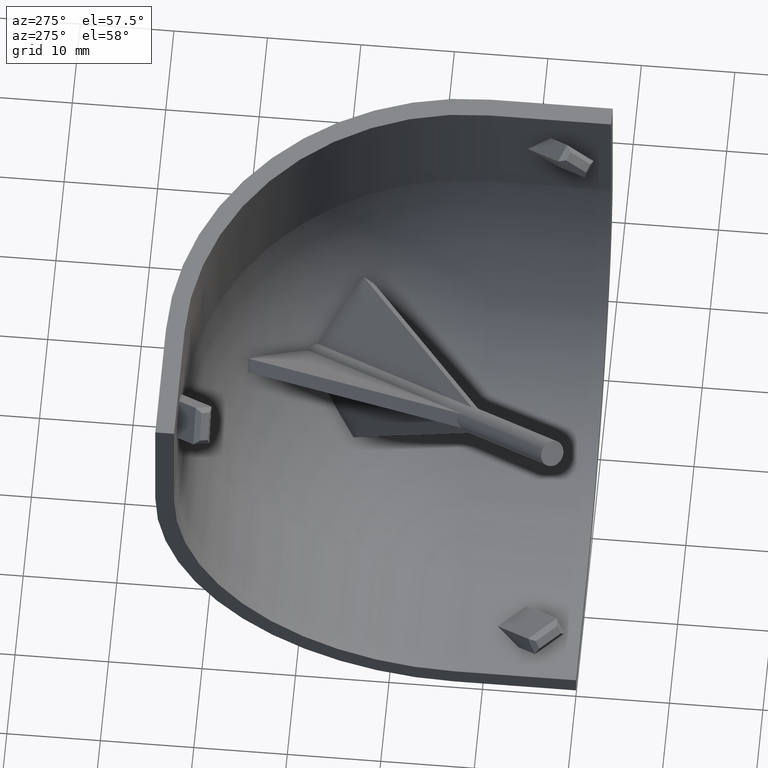
[diagram: clean part render]
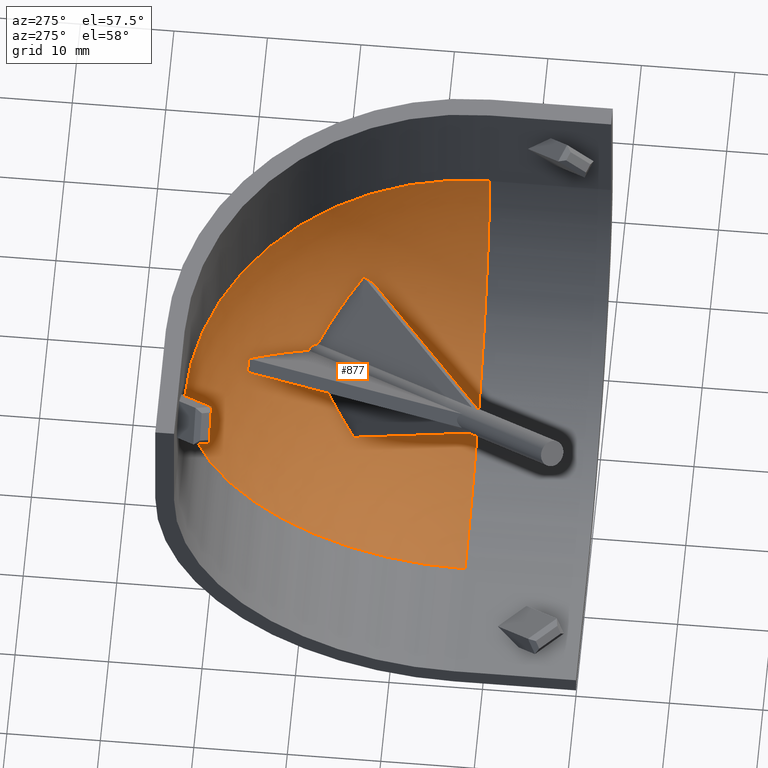
[diagram: same view with one face highlighted and labeled with its STEP entity id]
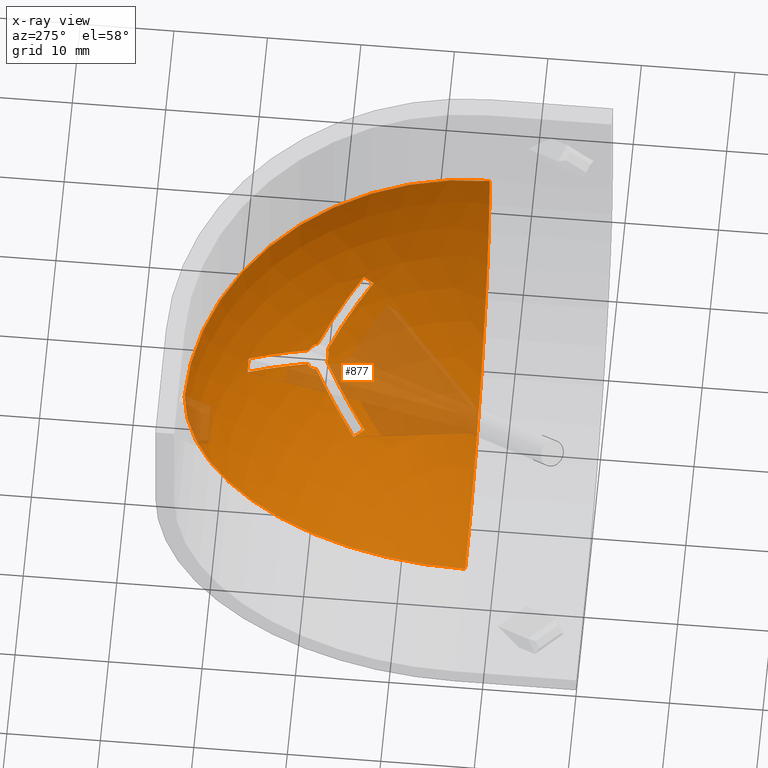
[diagram: x-ray of the same camera — body ghosted, the highlighted face saturated]
A machine part, auxiliary view. The second image highlights one B-rep face of the part: STEP entity #877.
The next image is the same camera in x-ray: the body ghosted, the highlighted face saturated — about 15% of this face is hidden behind the body in this view.
In plain terms, the highlighted spherical surface has radius 30 mm.
Its self-contained STEP definition (entity closure, byte-faithful):
#61=SPHERICAL_SURFACE('',#941,30.);
#64=FACE_BOUND('',#327,.T.);
#270=FACE_OUTER_BOUND('',#326,.T.);
#326=EDGE_LOOP('',(#628,#629,#630));
#327=EDGE_LOOP('',(#631,#632,#633,#634,#635,#636,#637,#638,#639,#640,#641,
#642));
#385=CIRCLE('',#936,1.4);
#386=CIRCLE('',#938,1.4);
#387=CIRCLE('',#940,1.4);
#388=CIRCLE('',#942,30.);
#389=CIRCLE('',#943,30.);
#390=CIRCLE('',#944,30.);
#391=CIRCLE('',#945,29.9616539883931);
#392=CIRCLE('',#946,29.9906235346983);
#393=CIRCLE('',#947,29.9906235346983);
#394=CIRCLE('',#948,29.9616539883931);
#395=CIRCLE('',#949,29.9906235346983);
#396=CIRCLE('',#950,29.9906235346983);
#397=CIRCLE('',#951,29.9616539883931);
#398=CIRCLE('',#952,29.9906235346983);
#399=CIRCLE('',#953,29.9906235346983);
#412=VERTEX_POINT('',#1290);
#413=VERTEX_POINT('',#1292);
#416=VERTEX_POINT('',#1298);
#417=VERTEX_POINT('',#1300);
#420=VERTEX_POINT('',#1306);
#421=VERTEX_POINT('',#1308);
#422=VERTEX_POINT('',#1312);
#423=VERTEX_POINT('',#1313);
#424=VERTEX_POINT('',#1315);
#425=VERTEX_POINT('',#1318);
#426=VERTEX_POINT('',#1319);
#427=VERTEX_POINT('',#1322);
#428=VERTEX_POINT('',#1324);
#429=VERTEX_POINT('',#1327);
#430=VERTEX_POINT('',#1329);
#491=EDGE_CURVE('',#413,#412,#385,.T.);
#495=EDGE_CURVE('',#417,#416,#386,.T.);
#499=EDGE_CURVE('',#421,#420,#387,.T.);
#501=EDGE_CURVE('',#422,#423,#388,.T.);
#502=EDGE_CURVE('',#424,#422,#389,.T.);
#503=EDGE_CURVE('',#424,#423,#390,.T.);
#504=EDGE_CURVE('',#425,#426,#391,.T.);
#505=EDGE_CURVE('',#426,#421,#392,.T.);
#506=EDGE_CURVE('',#427,#420,#393,.T.);
#507=EDGE_CURVE('',#427,#428,#394,.T.);
#508=EDGE_CURVE('',#428,#417,#395,.T.);
#509=EDGE_CURVE('',#429,#416,#396,.T.);
#510=EDGE_CURVE('',#429,#430,#397,.T.);
#511=EDGE_CURVE('',#430,#413,#398,.T.);
#512=EDGE_CURVE('',#425,#412,#399,.T.);
#628=ORIENTED_EDGE('',*,*,#501,.F.);
#629=ORIENTED_EDGE('',*,*,#502,.F.);
#630=ORIENTED_EDGE('',*,*,#503,.T.);
#631=ORIENTED_EDGE('',*,*,#504,.T.);
#632=ORIENTED_EDGE('',*,*,#505,.T.);
#633=ORIENTED_EDGE('',*,*,#499,.T.);
#634=ORIENTED_EDGE('',*,*,#506,.F.);
#635=ORIENTED_EDGE('',*,*,#507,.T.);
#636=ORIENTED_EDGE('',*,*,#508,.T.);
#637=ORIENTED_EDGE('',*,*,#495,.T.);
#638=ORIENTED_EDGE('',*,*,#509,.F.);
#639=ORIENTED_EDGE('',*,*,#510,.T.);
#640=ORIENTED_EDGE('',*,*,#511,.T.);
#641=ORIENTED_EDGE('',*,*,#491,.T.);
#642=ORIENTED_EDGE('',*,*,#512,.F.);
#877=ADVANCED_FACE('',(#270,#64),#61,.F.);
#936=AXIS2_PLACEMENT_3D('',#1293,#1025,#1026);
#938=AXIS2_PLACEMENT_3D('',#1301,#1031,#1032);
#940=AXIS2_PLACEMENT_3D('',#1309,#1037,#1038);
#941=AXIS2_PLACEMENT_3D('',#1311,#1040,#1041);
#942=AXIS2_PLACEMENT_3D('',#1314,#1042,#1043);
#943=AXIS2_PLACEMENT_3D('',#1316,#1044,#1045);
#944=AXIS2_PLACEMENT_3D('',#1317,#1046,#1047);
#945=AXIS2_PLACEMENT_3D('',#1320,#1048,#1049);
#946=AXIS2_PLACEMENT_3D('',#1321,#1050,#1051);
#947=AXIS2_PLACEMENT_3D('',#1323,#1052,#1053);
#948=AXIS2_PLACEMENT_3D('',#1325,#1054,#1055);
#949=AXIS2_PLACEMENT_3D('',#1326,#1056,#1057);
#950=AXIS2_PLACEMENT_3D('',#1328,#1058,#1059);
#951=AXIS2_PLACEMENT_3D('',#1330,#1060,#1061);
#952=AXIS2_PLACEMENT_3D('',#1331,#1062,#1063);
#953=AXIS2_PLACEMENT_3D('',#1332,#1064,#1065);
#1025=DIRECTION('center_axis',(0.577350269189624,0.577350269189624,-0.57735026918963));
#1026=DIRECTION('ref_axis',(0.707106781186551,6.40987562127852E-17,0.707106781186544));
#1031=DIRECTION('center_axis',(0.577350269189624,0.577350269189624,-0.57735026918963));
#1032=DIRECTION('ref_axis',(0.707106781186551,6.40987562127852E-17,0.707106781186544));
#1037=DIRECTION('center_axis',(0.577350269189624,0.577350269189624,-0.57735026918963));
#1038=DIRECTION('ref_axis',(0.70710678118655,1.70899131969916E-15,0.707106781186545));
#1040=DIRECTION('center_axis',(5.9211894646675E-17,0.,1.));
#1041=DIRECTION('ref_axis',(1.,0.,0.));
#1042=DIRECTION('center_axis',(0.,0.,-1.));
#1043=DIRECTION('ref_axis',(1.,0.,0.));
#1044=DIRECTION('center_axis',(1.,0.,0.));
#1045=DIRECTION('ref_axis',(0.,0.,1.));
#1046=DIRECTION('center_axis',(0.,-1.,0.));
#1047=DIRECTION('ref_axis',(1.,0.,0.));
#1048=DIRECTION('center_axis',(0.551217453556055,0.551217453556047,0.626353444782071));
#1049=DIRECTION('ref_axis',(-0.750697811457472,-9.17961462769757E-17,0.660645741583915));
#1050=DIRECTION('center_axis',(0.707106781186543,-0.707106781186552,-1.30843890190042E-15));
#1051=DIRECTION('ref_axis',(-0.707106781186552,-0.707106781186543,0.));
#1052=DIRECTION('center_axis',(-0.707106781186556,2.74615064022129E-15,
-0.707106781186539));
#1053=DIRECTION('ref_axis',(0.707106781186539,-1.06429637653395E-14,-0.707106781186556));
#1054=DIRECTION('center_axis',(0.55121745355604,-0.626353444782076,-0.551217453556055));
#1055=DIRECTION('ref_axis',(-2.73519133342325E-14,-0.660645741583926,0.750697811457463));
#1056=DIRECTION('center_axis',(-0.707106781186556,2.74615064022129E-15,
-0.707106781186539));
#1057=DIRECTION('ref_axis',(0.707106781186539,-8.67632915652678E-16,-0.707106781186556));
#1058=DIRECTION('center_axis',(2.77555756156289E-17,0.707106781186548,0.707106781186547));
#1059=DIRECTION('ref_axis',(2.66074094133488E-15,0.707106781186547,-0.707106781186548));
#1060=DIRECTION('center_axis',(-0.626353444782076,0.551217453556047,-0.551217453556048));
#1061=DIRECTION('ref_axis',(0.660645741583929,4.21738323785582E-14,-0.750697811457461));
#1062=DIRECTION('center_axis',(2.77555756156289E-17,0.707106781186548,0.707106781186547));
#1063=DIRECTION('ref_axis',(7.98222282400464E-15,0.707106781186547,-0.707106781186548));
#1064=DIRECTION('center_axis',(0.707106781186543,-0.707106781186552,-1.30843890190042E-15));
#1065=DIRECTION('ref_axis',(-0.707106781186552,-0.707106781186543,3.52837385698756E-15));
#1290=CARTESIAN_POINT('',(30.3493533652992,29.2886931935193,-31.2668665029666));
#1292=CARTESIAN_POINT('',(31.2668665029663,29.2886931935194,-30.3493533652995));
#1293=CARTESIAN_POINT('Origin',(30.3016376872806,30.3016376872806,-30.3016376872239));
#1298=CARTESIAN_POINT('',(31.2668665029663,30.3493533652992,-29.2886931935196));
#1300=CARTESIAN_POINT('',(30.3493533652992,31.2668665029663,-29.2886931935197));
#1301=CARTESIAN_POINT('Origin',(30.3016376872806,30.3016376872806,-30.3016376872239));
#1306=CARTESIAN_POINT('',(29.2886931935194,31.2668665029663,-30.3493533652995));
#1308=CARTESIAN_POINT('',(29.2886931935194,30.3493533652991,-31.2668665029666));
#1309=CARTESIAN_POINT('Origin',(30.3016376872806,30.3016376872806,-30.3016376872239));
#1311=CARTESIAN_POINT('Origin',(13.,13.,-13.));
#1312=CARTESIAN_POINT('',(12.9999999999998,43.,-13.));
#1313=CARTESIAN_POINT('',(43.0000000000001,12.9999999999998,-13.));
#1314=CARTESIAN_POINT('Origin',(13.,13.,-13.));
#1315=CARTESIAN_POINT('',(12.9999999999999,12.9999999999996,-43.));
#1316=CARTESIAN_POINT('Origin',(13.,13.,-13.));
#1317=CARTESIAN_POINT('Origin',(13.,12.9999999999996,-13.));
#1318=CARTESIAN_POINT('',(25.9603179193382,24.8996577475581,-37.298730520763));
#1319=CARTESIAN_POINT('',(24.8996577475584,25.960317919338,-37.298730520763));
#1320=CARTESIAN_POINT('Origin',(12.1641663295399,12.1641663295399,-13.9497654607635));
#1321=CARTESIAN_POINT('Origin',(12.4696699141102,13.5303300858899,-13.));
#1322=CARTESIAN_POINT('',(24.8996577475583,37.2987305207628,-25.9603179193386));
#1323=CARTESIAN_POINT('Origin',(12.46966991411,13.,-13.53033008589));
#1324=CARTESIAN_POINT('',(25.9603179193381,37.2987305207628,-24.8996577475587));
#1325=CARTESIAN_POINT('Origin',(12.16416632954,13.9497654607634,-12.1641663295399));
#1326=CARTESIAN_POINT('Origin',(13.5303300858898,13.,-12.4696699141102));
#1327=CARTESIAN_POINT('',(37.2987305207628,25.9603179193383,-24.8996577475585));
#1328=CARTESIAN_POINT('Origin',(13.,13.5303300858899,-12.4696699141101));
#1329=CARTESIAN_POINT('',(37.2987305207628,24.8996577475585,-25.9603179193383));
#1330=CARTESIAN_POINT('Origin',(13.9497654607634,12.16416632954,-12.16416632954));
#1331=CARTESIAN_POINT('Origin',(13.,12.4696699141101,-13.5303300858899));
#1332=CARTESIAN_POINT('Origin',(13.53033008589,12.46966991411,-13.));